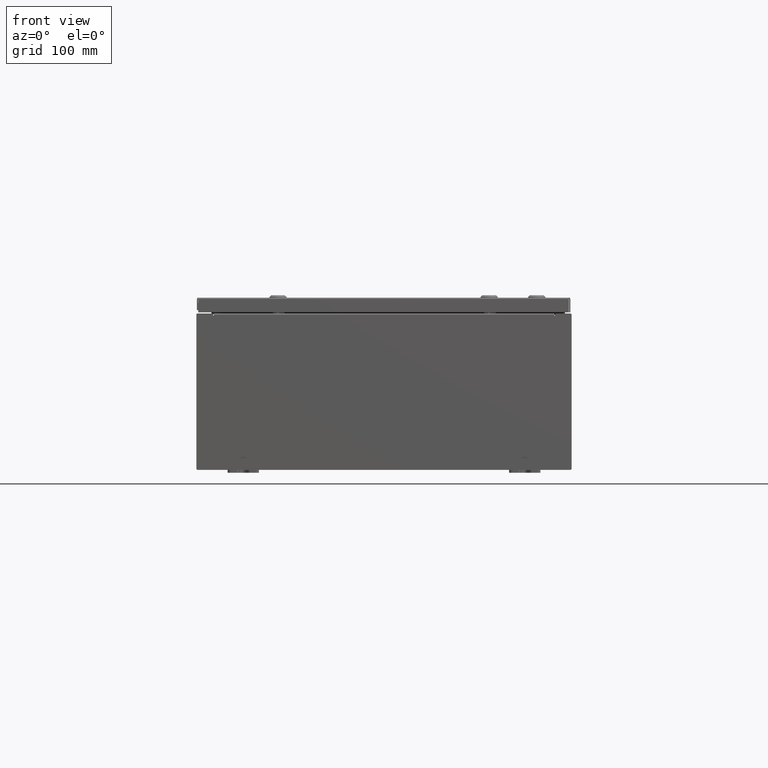
[diagram: clean part render]
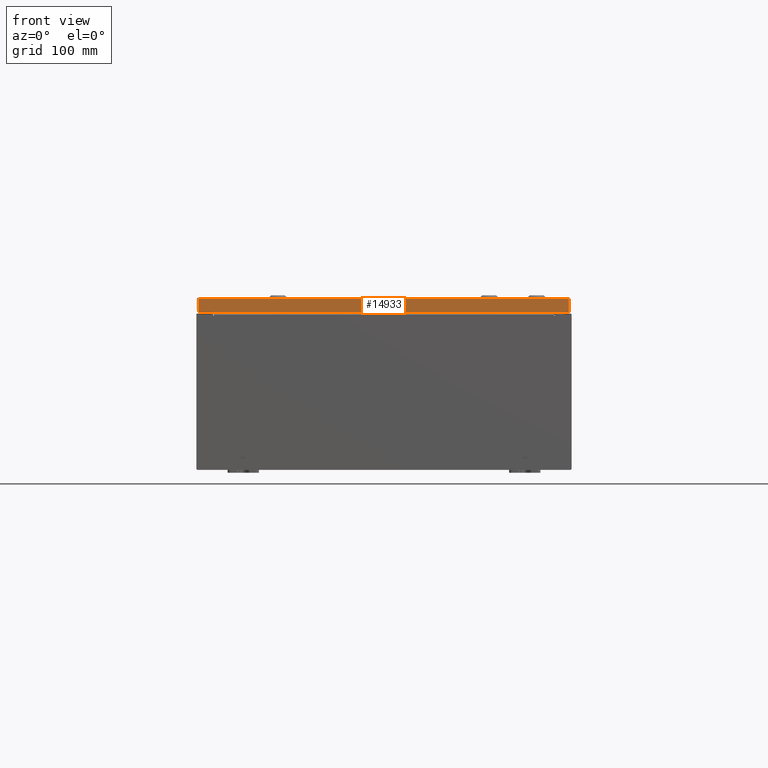
[diagram: same view with one face highlighted and labeled with its STEP entity id]
A machine part, front view. The second image highlights one B-rep face of the part: STEP entity #14933.
In plain terms, the highlighted planar face has unit normal (-0, 1, -0).
Its self-contained STEP definition (entity closure, byte-faithful):
#645 = EDGE_CURVE ( 'NONE', #9252, #54291, #36070, .T. ) ;
#8814 = LINE ( 'NONE', #30440, #33768 ) ;
#9252 = VERTEX_POINT ( 'NONE', #19008 ) ;
#11720 = EDGE_LOOP ( 'NONE', ( #44164, #57479, #36353, #49311 ) ) ;
#11928 = FACE_OUTER_BOUND ( 'NONE', #11720, .T. ) ;
#14933 = ADVANCED_FACE ( 'NONE', ( #11928 ), #53536, .F. ) ;
#17488 = EDGE_CURVE ( 'NONE', #63521, #61596, #54673, .T. ) ;
#17803 = CARTESIAN_POINT ( 'NONE',  ( -11.84865786437626800, -17.93750000000000000, -0.9376999999999967600 ) ) ;
#19008 = CARTESIAN_POINT ( 'NONE',  ( 11.84865786437626900, -17.93750000000000000, -0.9376999999999997600 ) ) ;
#23823 = CARTESIAN_POINT ( 'NONE',  ( 5.717464428787660300E-030, -17.93749999999999600, 4.568609605355754200E-014 ) ) ;
#27101 = AXIS2_PLACEMENT_3D ( 'NONE', #23823, #29664, #64383 ) ;
#27653 = EDGE_CURVE ( 'NONE', #63521, #54291, #8814, .T. ) ;
#29664 = DIRECTION ( 'NONE',  ( -3.187436615352006200E-031, 1.000000000000000000, -2.532419924601866100E-015 ) ) ;
#30440 = CARTESIAN_POINT ( 'NONE',  ( -11.84865786437626900, -17.93749999999999600, 4.568609605355754200E-014 ) ) ;
#33768 = VECTOR ( 'NONE', #45196, 39.37007874015748100 ) ;
#36070 = LINE ( 'NONE', #53014, #46118 ) ;
#36353 = ORIENTED_EDGE ( 'NONE', *, *, #645, .F. ) ;
#37321 = VECTOR ( 'NONE', #39549, 39.37007874015748100 ) ;
#39549 = DIRECTION ( 'NONE',  ( -0.0000000000000000000, -2.532419924601866100E-015, -1.000000000000000000 ) ) ;
#44164 = ORIENTED_EDGE ( 'NONE', *, *, #17488, .F. ) ;
#45196 = DIRECTION ( 'NONE',  ( 0.0000000000000000000, -2.532419924601866100E-015, -1.000000000000000000 ) ) ;
#46118 = VECTOR ( 'NONE', #63225, 39.37007874015748100 ) ;
#49307 = CARTESIAN_POINT ( 'NONE',  ( 11.93750000000000000, -17.93749999999999600, -0.08770000000000008300 ) ) ;
#49311 = ORIENTED_EDGE ( 'NONE', *, *, #62893, .F. ) ;
#52065 = LINE ( 'NONE', #59348, #37321 ) ;
#53014 = CARTESIAN_POINT ( 'NONE',  ( 11.93750000000000000, -17.93750000000000000, -0.9376999999999997600 ) ) ;
#53066 = VECTOR ( 'NONE', #54312, 39.37007874015748100 ) ;
#53536 = PLANE ( 'NONE',  #27101 ) ;
#54291 = VERTEX_POINT ( 'NONE', #17803 ) ;
#54312 = DIRECTION ( 'NONE',  ( 1.000000000000000000, 3.187436615352006600E-031, -7.980458346197363700E-046 ) ) ;
#54673 = LINE ( 'NONE', #49307, #53066 ) ;
#57479 = ORIENTED_EDGE ( 'NONE', *, *, #27653, .T. ) ;
#59348 = CARTESIAN_POINT ( 'NONE',  ( 11.84865786437626900, -17.93749999999999600, -0.07469999999999980800 ) ) ;
#61596 = VERTEX_POINT ( 'NONE', #63025 ) ;
#62893 = EDGE_CURVE ( 'NONE', #61596, #9252, #52065, .T. ) ;
#63025 = CARTESIAN_POINT ( 'NONE',  ( 11.84865786437626800, -17.93749999999999600, -0.08770000000000008300 ) ) ;
#63225 = DIRECTION ( 'NONE',  ( -1.000000000000000000, 4.379057701015054300E-047, 1.258652478756310100E-016 ) ) ;
#63521 = VERTEX_POINT ( 'NONE', #64404 ) ;
#64383 = DIRECTION ( 'NONE',  ( 0.0000000000000000000, 2.532419924601866100E-015, 1.000000000000000000 ) ) ;
#64404 = CARTESIAN_POINT ( 'NONE',  ( -11.84865786437626800, -17.93749999999999600, -0.08770000000000008300 ) ) ;